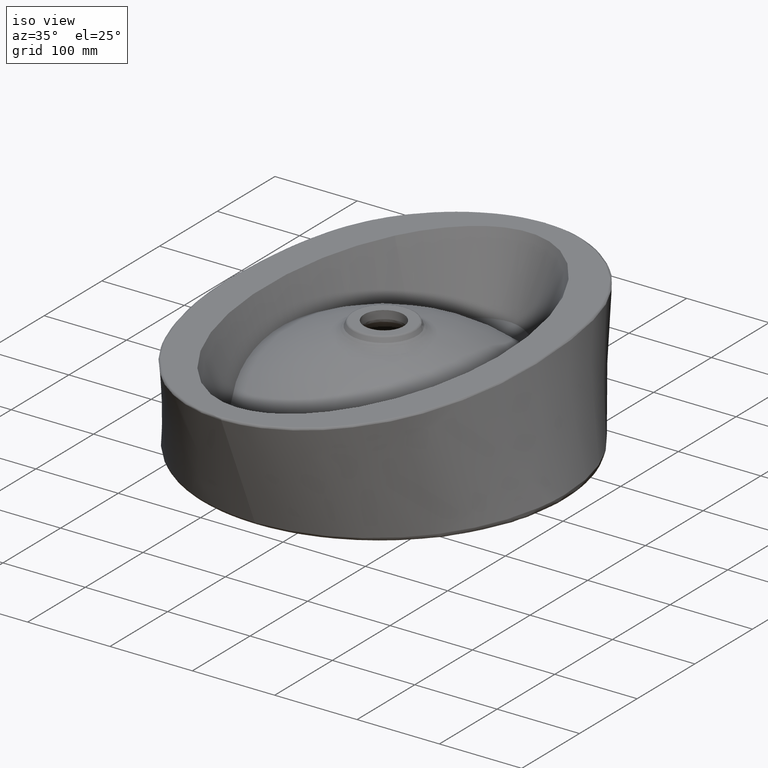
[diagram: clean part render]
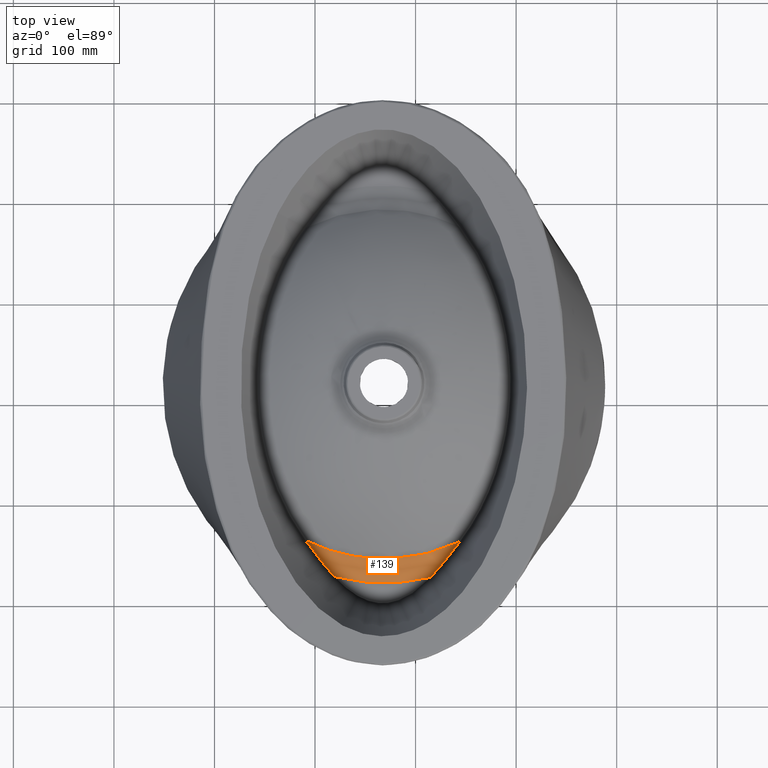
[diagram: tour spotlight — one face highlighted and labeled with its STEP entity id]
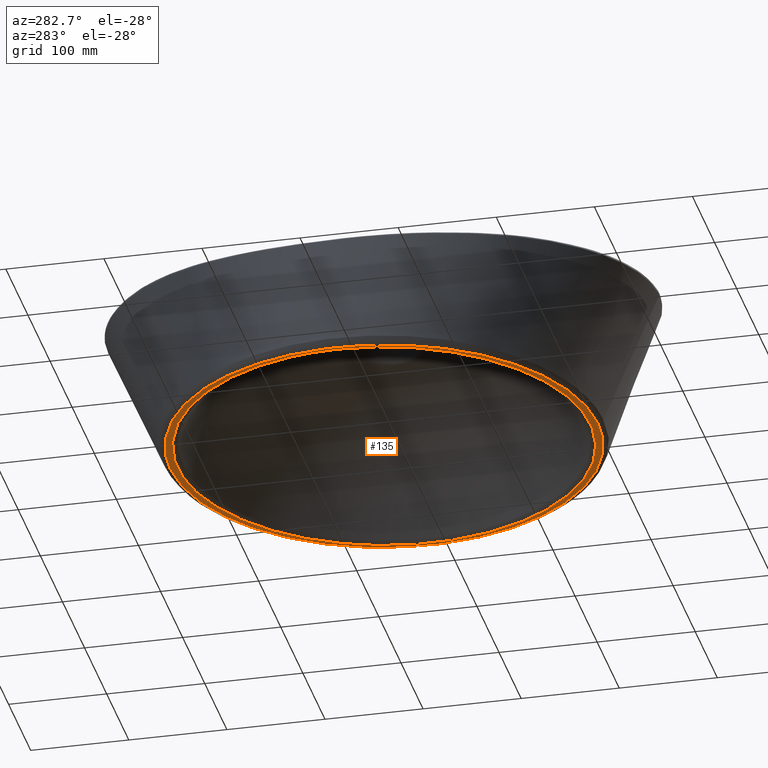
[diagram: tour spotlight — one face highlighted and labeled with its STEP entity id]
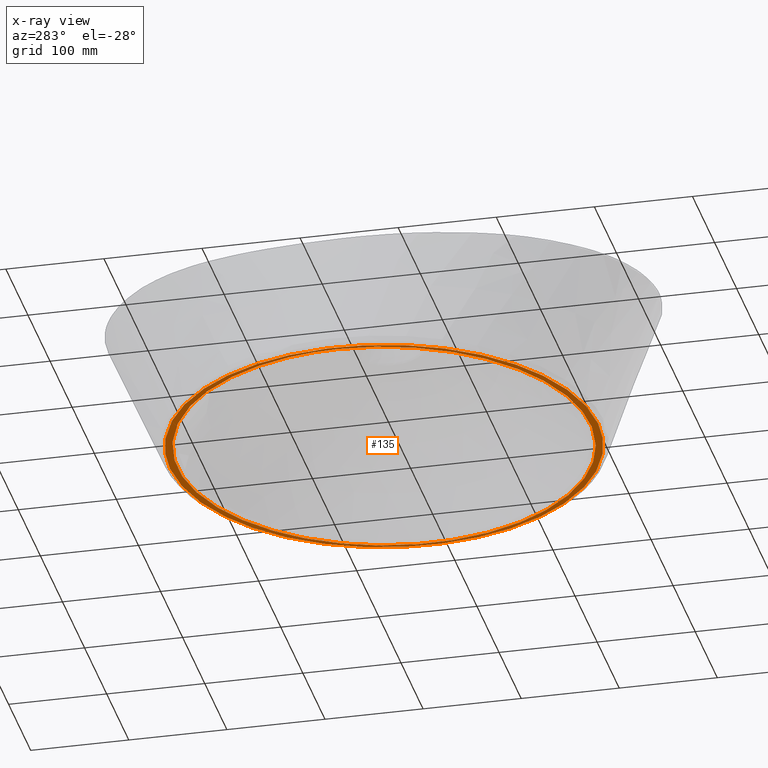
[diagram: x-ray of the same camera — body ghosted, this tour face saturated]
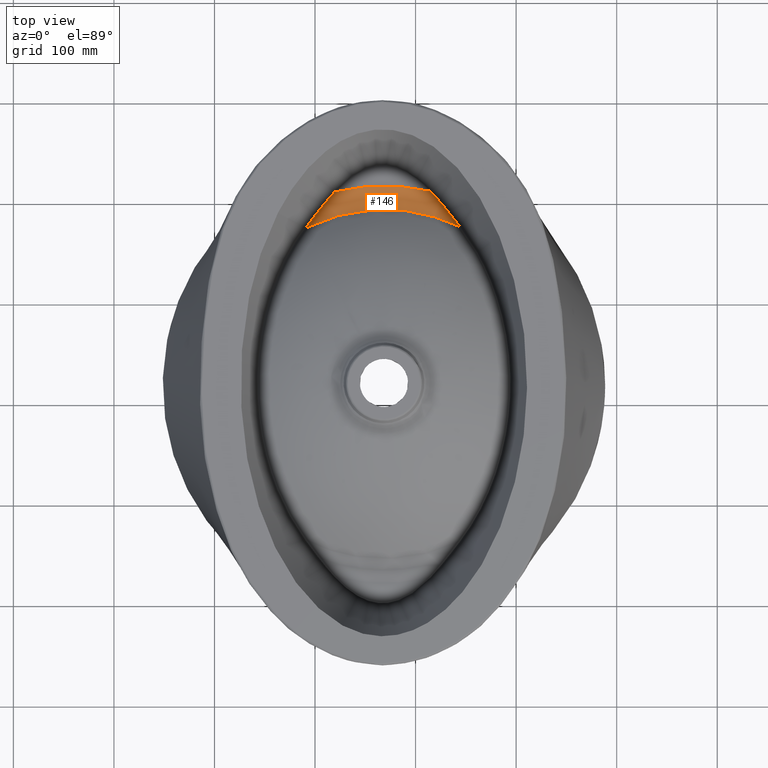
[diagram: tour spotlight — one face highlighted and labeled with its STEP entity id]
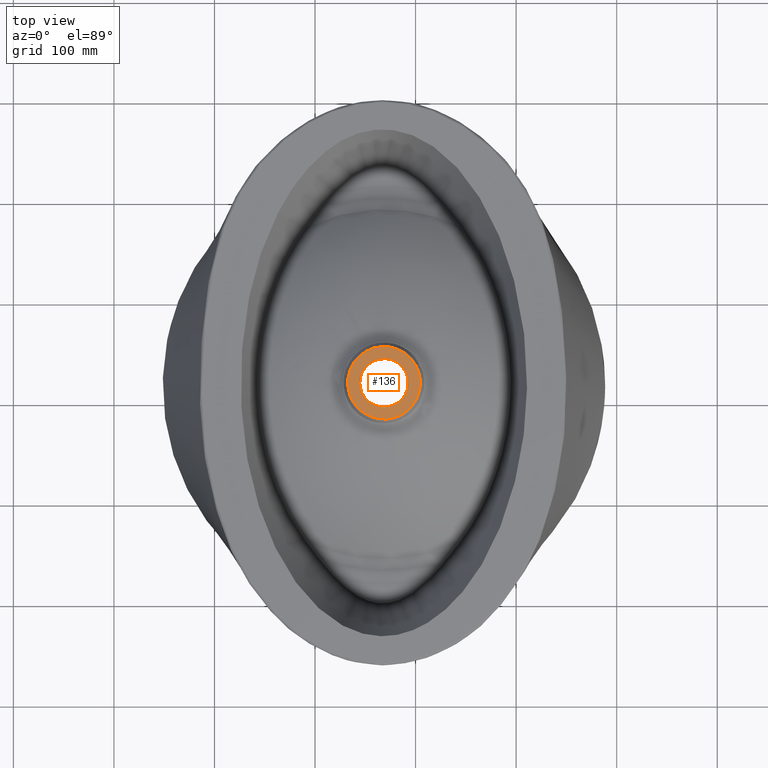
[diagram: tour spotlight — one face highlighted and labeled with its STEP entity id]
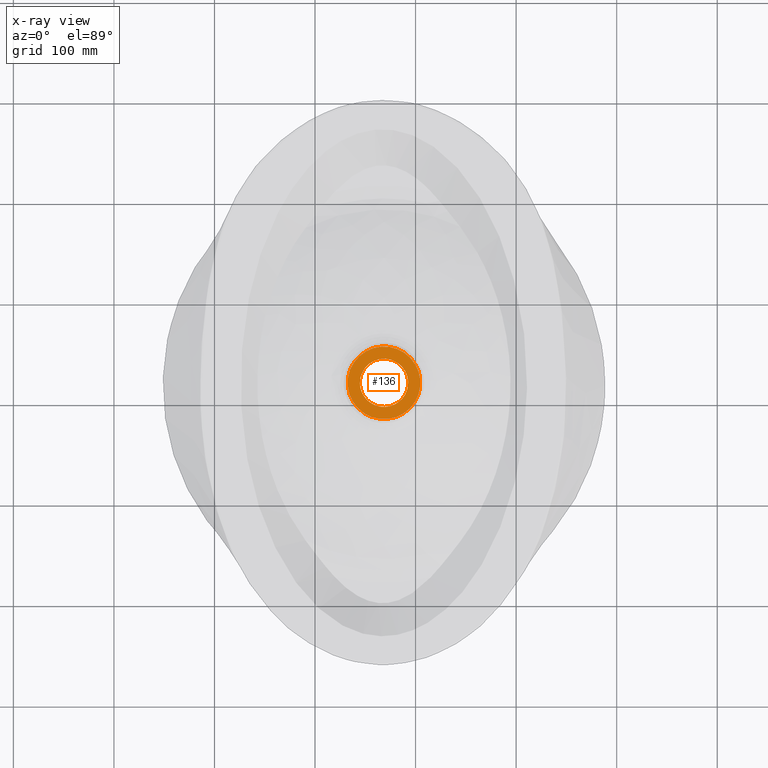
[diagram: x-ray of the same camera — body ghosted, this tour face saturated]
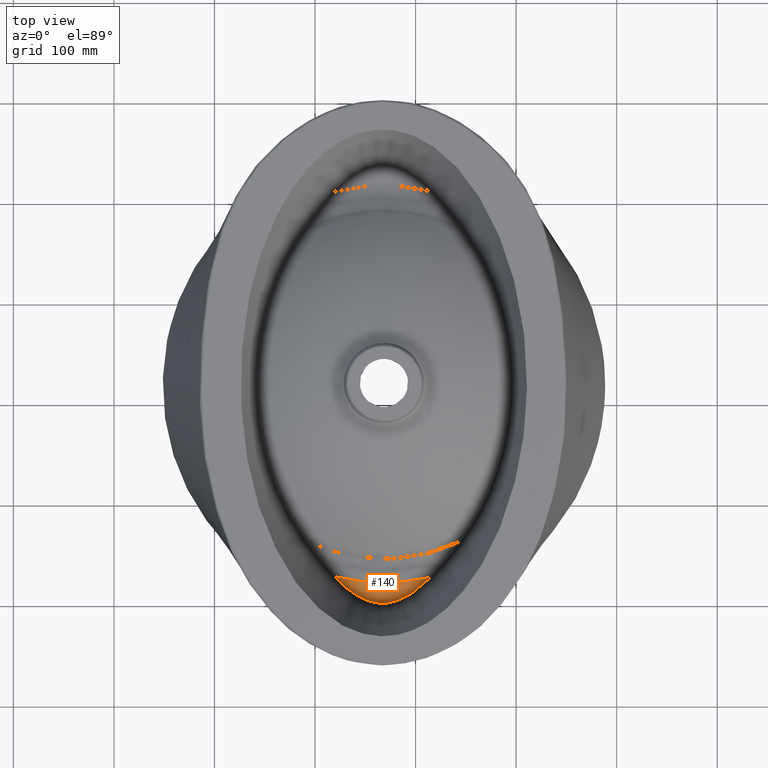
[diagram: tour spotlight — one face highlighted and labeled with its STEP entity id]
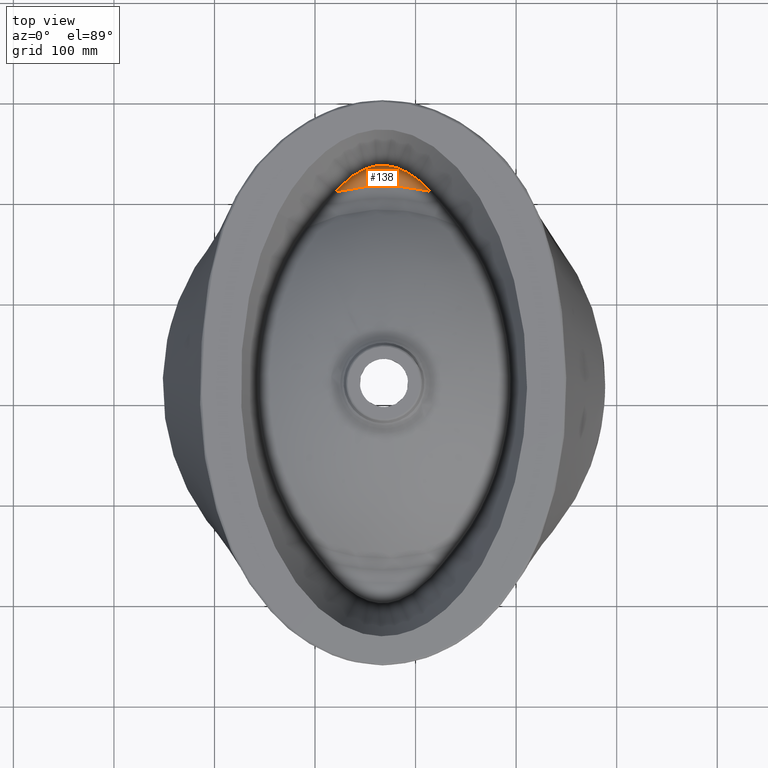
[diagram: tour spotlight — one face highlighted and labeled with its STEP entity id]
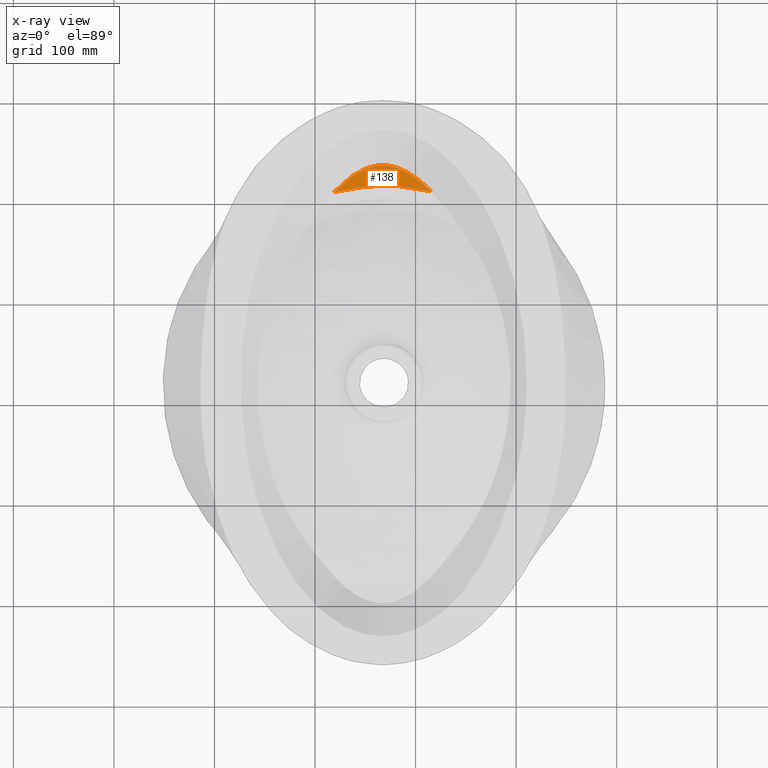
[diagram: x-ray of the same camera — body ghosted, this tour face saturated]
A machine part: a face-by-face anatomy tour. The part has 25 B-rep faces; the first image is the clean iso view, then the 6 largest visible faces are spotlighted one at a time (largest first), each with its STEP entity span.

Face 1 — top view, entity #139. In plain terms, the highlighted face is a freeform B-spline surface patch.
Definition (entity closure, byte-faithful):
#103=(
BOUNDED_SURFACE()
B_SPLINE_SURFACE(3,2,((#1013,#1014,#1015),(#1016,#1017,#1018),(#1019,#1020,
#1021),(#1022,#1023,#1024),(#1025,#1026,#1027),(#1028,#1029,#1030),(#1031,
#1032,#1033),(#1034,#1035,#1036),(#1037,#1038,#1039),(#1040,#1041,#1042),
(#1043,#1044,#1045),(#1046,#1047,#1048),(#1049,#1050,#1051),(#1052,#1053,
#1054),(#1055,#1056,#1057),(#1058,#1059,#1060),(#1061,#1062,#1063),(#1064,
#1065,#1066)),.UNSPECIFIED.,.F.,.F.,.F.)
B_SPLINE_SURFACE_WITH_KNOTS((4,2,2,2,2,2,2,2,4),(3,3),(0.,0.125,0.25,0.375,
0.5,0.75,0.8125,0.875,1.),(0.,1.),.UNSPECIFIED.)
GEOMETRIC_REPRESENTATION_ITEM()
RATIONAL_B_SPLINE_SURFACE(((1.,0.931697495796883,1.),(1.,0.931699319442522,
1.),(1.,0.931699182159446,1.),(1.,0.931696538213427,1.),(1.,0.931694742089065,
1.),(1.,0.931693677166306,1.),(1.,0.931694406140896,1.),(1.,0.931697192015914,
1.),(1.,0.931699206368978,1.),(1.,0.931698296147536,1.),(1.,0.931692851253933,
1.),(1.,0.93169488880163,1.),(1.,0.931695560533222,1.),(1.,0.931697036007378,
1.),(1.,0.931697838607875,1.),(1.,0.931699435853988,1.),(1.,0.931698652348789,
1.),(1.,0.931696916472136,1.)))
REPRESENTATION_ITEM('')
SURFACE()
);
#126=FACE_OUTER_BOUND('',#200,.T.);
#139=ADVANCED_FACE('',(#126),#103,.T.);
#200=EDGE_LOOP('',(#243,#244,#245,#246));
#243=ORIENTED_EDGE('',*,*,#350,.T.);
#244=ORIENTED_EDGE('',*,*,#351,.T.);
#245=ORIENTED_EDGE('',*,*,#352,.T.);
#246=ORIENTED_EDGE('',*,*,#353,.T.);
#321=VERTEX_POINT('',#979);
#322=VERTEX_POINT('',#980);
#323=VERTEX_POINT('',#989);
#324=VERTEX_POINT('',#996);
#350=EDGE_CURVE('',#321,#322,#389,.T.);
#351=EDGE_CURVE('',#322,#323,#390,.T.);
#352=EDGE_CURVE('',#323,#324,#391,.T.);
#353=EDGE_CURVE('',#324,#321,#392,.T.);
#389=B_SPLINE_CURVE_WITH_KNOTS('',3,(#973,#974,#975,#976,#977,#978),
 .UNSPECIFIED.,.F.,.F.,(4,2,4),(0.,0.5,1.),.UNSPECIFIED.);
#390=B_SPLINE_CURVE_WITH_KNOTS('',3,(#981,#982,#983,#984,#985,#986,#987,
#988),.UNSPECIFIED.,.F.,.F.,(4,2,2,4),(0.,0.5,0.75,1.),.UNSPECIFIED.);
#391=B_SPLINE_CURVE_WITH_KNOTS('',3,(#990,#991,#992,#993,#994,#995),
 .UNSPECIFIED.,.F.,.F.,(4,2,4),(0.,0.5,1.),.UNSPECIFIED.);
#392=B_SPLINE_CURVE_WITH_KNOTS('',3,(#997,#998,#999,#1000,#1001,#1002,#1003,
#1004,#1005,#1006,#1007,#1008,#1009,#1010,#1011,#1012),.UNSPECIFIED.,.F.,
 .F.,(4,2,2,2,2,2,2,4),(0.,0.125,0.25,0.375,0.5,0.75,0.875,1.),
 .UNSPECIFIED.);
#973=CARTESIAN_POINT('',(190.471527451647,-335.352552083994,174.235832542675));
#974=CARTESIAN_POINT('',(194.884213929976,-341.24737916602,171.218798129591));
#975=CARTESIAN_POINT('',(199.397508946079,-347.27241009631,168.933098349699));
#976=CARTESIAN_POINT('',(208.9173643323,-359.351094455966,165.820643985694));
#977=CARTESIAN_POINT('',(213.957004188166,-365.453170748607,165.000000000094));
#978=CARTESIAN_POINT('',(219.339496953542,-371.333690978372,165.000000000094));
#979=CARTESIAN_POINT('',(190.471527453963,-335.352552085992,174.235832541991));
#980=CARTESIAN_POINT('',(219.339496953541,-371.333690978372,165.000000000094));
#981=CARTESIAN_POINT('',(219.339496953541,-371.333690978372,165.000000000094));
#982=CARTESIAN_POINT('',(235.01457066413,-375.363062185071,165.000000000092));
#983=CARTESIAN_POINT('',(250.892532392169,-377.438825221064,165.00000000009));
#984=CARTESIAN_POINT('',(275.012213470833,-377.637401707193,165.000000000087));
#985=CARTESIAN_POINT('',(283.157283782419,-377.200108010685,165.000000000086));
#986=CARTESIAN_POINT('',(299.174224295407,-375.350972306021,165.000000000084));
#987=CARTESIAN_POINT('',(307.068461247952,-373.946624279451,165.000000000084));
#988=CARTESIAN_POINT('',(314.851117454118,-372.073636827354,165.000000000083));
#989=CARTESIAN_POINT('',(314.851117454118,-372.073636827354,165.000000000083));
#990=CARTESIAN_POINT('',(314.851117829163,-372.07363659669,165.000000000083));
#991=CARTESIAN_POINT('',(320.320122377981,-366.285611630332,165.000000017039));
#992=CARTESIAN_POINT('',(325.399435645145,-360.337635459118,165.804250502134));
#993=CARTESIAN_POINT('',(335.127696075172,-348.391615440892,168.906464884674));
#994=CARTESIAN_POINT('',(339.801019209466,-342.356238877371,171.220561428395));
#995=CARTESIAN_POINT('',(344.298156473016,-336.535011895029,174.235758381589));
#996=CARTESIAN_POINT('',(344.298156482571,-336.535011899422,174.235758374124));
#997=CARTESIAN_POINT('',(344.298156488452,-336.53501190857,174.235758364197));
#998=CARTESIAN_POINT('',(338.307659942318,-339.436119401214,174.235581041099));
#999=CARTESIAN_POINT('',(332.08750896722,-342.013617504608,174.235579682479));
#1000=CARTESIAN_POINT('',(319.542024992611,-346.379856047103,174.235932256303));
#1001=CARTESIAN_POINT('',(313.180790894595,-348.191234706339,174.236155867952));
#1002=CARTESIAN_POINT('',(300.285737439654,-351.088990115187,174.236279668447));
#1003=CARTESIAN_POINT('',(293.751922241343,-352.175384334439,174.236180157327));
#1004=CARTESIAN_POINT('',(280.506856192595,-353.602795167388,174.235818518881));
#1005=CARTESIAN_POINT('',(273.787188722761,-353.937628014429,174.235561582834));
#1006=CARTESIAN_POINT('',(253.8776837733,-353.771656630179,174.235679274193));
#1007=CARTESIAN_POINT('',(240.761594780939,-352.151062803847,174.236382458085));
#1008=CARTESIAN_POINT('',(221.321678366709,-347.466360974201,174.236086314143));
#1009=CARTESIAN_POINT('',(214.889716877692,-345.519741053868,174.23583318386));
#1010=CARTESIAN_POINT('',(202.436422022957,-340.954103383553,174.235538547599));
#1011=CARTESIAN_POINT('',(196.373581246639,-338.323845067228,174.235643529919));
#1012=CARTESIAN_POINT('',(190.471527453963,-335.352552085992,174.235832541991));
#1013=CARTESIAN_POINT('',(345.159134389774,-336.115112360222,174.235784342887));
#1014=CARTESIAN_POINT('',(349.58678883131,-345.131130039256,165.000000000079));
#1015=CARTESIAN_POINT('',(355.601639332319,-357.37914965549,165.000000000078));
#1016=CARTESIAN_POINT('',(339.114599451066,-339.083733341798,174.235598763984));
#1017=CARTESIAN_POINT('',(343.192684855787,-348.271371113052,165.000000001566));
#1018=CARTESIAN_POINT('',(348.732583291152,-360.752457865046,165.000000000079));
#1019=CARTESIAN_POINT('',(332.846253743266,-341.71775871793,174.235564377943));
#1020=CARTESIAN_POINT('',(336.555818131961,-351.060280936296,164.999999999975));
#1021=CARTESIAN_POINT('',(341.595145204391,-363.751730810443,165.00000000008));
#1022=CARTESIAN_POINT('',(320.168114452068,-346.190457208568,174.235909247583));
#1023=CARTESIAN_POINT('',(323.14252282458,-355.792443406278,165.000000000187));
#1024=CARTESIAN_POINT('',(327.183222663962,-368.836539770983,165.000000000082));
#1025=CARTESIAN_POINT('',(313.732016310403,-348.047676369844,174.236143530259));
#1026=CARTESIAN_POINT('',(316.336257652288,-357.756435959585,165.000000000294));
#1027=CARTESIAN_POINT('',(319.874110072277,-370.945708437044,165.000000000082));
#1028=CARTESIAN_POINT('',(300.680109634922,-351.018679227849,174.236282434382));
#1029=CARTESIAN_POINT('',(302.534939156928,-360.898069871898,164.999999999873));
#1030=CARTESIAN_POINT('',(305.054734993327,-374.319215676984,165.000000000084));
#1031=CARTESIAN_POINT('',(294.064319493779,-352.132470058058,174.23618735026));
#1032=CARTESIAN_POINT('',(295.539915594813,-362.075718084313,165.000000000298));
#1033=CARTESIAN_POINT('',(297.544476213013,-375.583569824843,165.000000000085));
#1034=CARTESIAN_POINT('',(280.659096249202,-353.595320780237,174.235823967064));
#1035=CARTESIAN_POINT('',(281.362238465371,-363.622753788673,164.999999999873));
#1036=CARTESIAN_POINT('',(282.317411191013,-377.244778242522,165.000000000087));
#1037=CARTESIAN_POINT('',(273.861751341871,-353.93813177849,174.235561219316));
#1038=CARTESIAN_POINT('',(274.170058065057,-363.985524498408,164.999999999559));
#1039=CARTESIAN_POINT('',(274.588887170882,-377.634521456147,165.000000000087));
#1040=CARTESIAN_POINT('',(253.737610055348,-353.770724478678,174.235679947775));
#1041=CARTESIAN_POINT('',(252.870512486428,-363.808374959443,165.000000001147));
#1042=CARTESIAN_POINT('',(251.692613414767,-377.444200453301,165.00000000009));
#1043=CARTESIAN_POINT('',(240.447647583427,-352.113599948085,174.236390165082));
#1044=CARTESIAN_POINT('',(238.820797336095,-362.05598933379,165.000000000519));
#1045=CARTESIAN_POINT('',(236.610646977602,-375.562761782134,165.000000000091));
#1046=CARTESIAN_POINT('',(224.045240816634,-348.112265194086,174.236124392708));
#1047=CARTESIAN_POINT('',(221.476056208353,-357.824692169647,164.999999999986));
#1048=CARTESIAN_POINT('',(217.985837249755,-371.018938389014,165.000000000094));
#1049=CARTESIAN_POINT('',(220.765979543213,-347.21075984395,174.236036773886));
#1050=CARTESIAN_POINT('',(218.00816040778,-356.871314524945,165.000000000201));
#1051=CARTESIAN_POINT('',(214.26169261467,-369.995046809952,165.000000000094));
#1052=CARTESIAN_POINT('',(214.306788757671,-345.230762476974,174.23584431682));
#1053=CARTESIAN_POINT('',(211.176314438785,-354.777023359971,164.999999999988));
#1054=CARTESIAN_POINT('',(206.923631322757,-367.745392172437,165.000000000095));
#1055=CARTESIAN_POINT('',(211.12064826835,-344.151370252728,174.235739627338));
#1056=CARTESIAN_POINT('',(207.80579820907,-353.635158194597,165.000000000042));
#1057=CARTESIAN_POINT('',(203.302665454397,-366.51860696733,165.000000000095));
#1058=CARTESIAN_POINT('',(201.692504196786,-340.64954000244,174.23553128646));
#1059=CARTESIAN_POINT('',(197.829627855185,-349.929711708659,165.000000000201));
#1060=CARTESIAN_POINT('',(192.582044283605,-362.536446050156,165.000000000097));
#1061=CARTESIAN_POINT('',(195.58293776633,-337.963928545163,174.235666698193));
#1062=CARTESIAN_POINT('',(191.360770930531,-347.086098714013,165.000000002946));
#1063=CARTESIAN_POINT('',(185.625127847866,-359.47828337595,165.000000000097));
#1064=CARTESIAN_POINT('',(189.622701136141,-334.922305745515,174.235859908639));
#1065=CARTESIAN_POINT('',(185.05721362899,-343.86933774429,165.000000000097));
#1066=CARTESIAN_POINT('',(178.855102392869,-356.023677801654,165.000000000098));

Face 2 — auxiliary view, entity #135. An x-ray twin of the same camera follows (body ghosted, this face saturated) — the face is partly hidden behind the body. In plain terms, the highlighted planar face has unit normal (0, -0, 1).
Definition (entity closure, byte-faithful):
#135=ADVANCED_FACE('',(#163,#164),#160,.F.);
#160=PLANE('',#419);
#163=FACE_BOUND('',#193,.T.);
#164=FACE_BOUND('',#194,.T.);
#193=EDGE_LOOP('',(#233));
#194=EDGE_LOOP('',(#234,#235));
#233=ORIENTED_EDGE('',*,*,#340,.T.);
#234=ORIENTED_EDGE('',*,*,#341,.T.);
#235=ORIENTED_EDGE('',*,*,#342,.T.);
#311=VERTEX_POINT('',#519);
#312=VERTEX_POINT('',#566);
#313=VERTEX_POINT('',#567);
#340=EDGE_CURVE('',#311,#311,#379,.T.);
#341=EDGE_CURVE('',#312,#313,#380,.T.);
#342=EDGE_CURVE('',#313,#312,#381,.T.);
#379=B_SPLINE_CURVE_WITH_KNOTS('',3,(#431,#432,#433,#434,#435,#436,#437,
#438,#439,#440,#441,#442,#443,#444,#445,#446,#447,#448,#449,#450,#451,#452,
#453,#454,#455,#456,#457,#458,#459,#460,#461,#462,#463,#464,#465,#466,#467,
#468,#469,#470,#471,#472,#473,#474,#475,#476,#477,#478,#479,#480,#481,#482,
#483,#484,#485,#486,#487,#488,#489,#490,#491,#492,#493,#494,#495,#496,#497,
#498,#499,#500,#501,#502,#503,#504,#505,#506,#507,#508,#509,#510,#511,#512,
#513,#514,#515,#516,#517,#518),.UNSPECIFIED.,.T.,.F.,(2,2,2,2,2,2,2,2,2,
2,2,2,2,2,2,2,2,2,2,2,2,2,2,2,2,2,2,2,2,2,2,2,2,2,2,2,2,2,2,2,2,2,2,2,2,
2),(-0.0312499999999998,0.,0.0312500000000002,0.0468750000000004,0.0625000000000005,
0.0937500000000007,0.125000000000001,0.156250000000001,0.171875000000001,
0.187500000000001,0.203125000000001,0.218750000000001,0.250000000000001,
0.265625000000001,0.281250000000001,0.312500000000002,0.328125000000002,
0.343750000000002,0.375000000000002,0.406250000000002,0.421875000000002,
0.437500000000002,0.468750000000002,0.500000000000002,0.531250000000002,
0.562500000000002,0.578125000000002,0.593750000000002,0.625000000000002,
0.656250000000002,0.671875000000002,0.687500000000002,0.718750000000001,
0.750000000000001,0.781250000000001,0.796875000000001,0.812500000000001,
0.828125000000001,0.843750000000001,0.875,0.90625,0.9375,0.953125,0.96875,
1.,1.03125),.UNSPECIFIED.);
#380=B_SPLINE_CURVE_WITH_KNOTS('',3,(#520,#521,#522,#523,#524,#525,#526,
#527,#528,#529,#530,#531,#532,#533,#534,#535,#536,#537,#538,#539,#540,#541,
#542,#543,#544,#545,#546,#547,#548,#549,#550,#551,#552,#553,#554,#555,#556,
#557,#558,#559,#560,#561,#562,#563,#564,#565),.UNSPECIFIED.,.F.,.F.,(4,
2,2,2,2,2,2,2,2,2,2,2,2,2,2,2,2,2,2,2,2,2,4),(0.,0.0625000000000002,0.0937500000000003,
0.125,0.187500000000001,0.218750000000001,0.250000000000001,0.312500000000001,
0.375,0.40625,0.4375,0.5,0.5625,0.625,0.65625,0.6875,0.75,0.78125,0.8125,
0.84375,0.875,0.9375,1.),.UNSPECIFIED.);
#381=B_SPLINE_CURVE_WITH_KNOTS('',3,(#568,#569,#570,#571,#572,#573,#574,
#575,#576,#577,#578,#579,#580,#581,#582,#583,#584,#585,#586,#587,#588,#589,
#590,#591,#592,#593,#594,#595,#596,#597,#598,#599,#600,#601,#602,#603,#604,
#605,#606,#607,#608,#609,#610,#611),.UNSPECIFIED.,.F.,.F.,(4,2,2,2,2,2,
2,2,2,2,2,2,2,2,2,2,2,2,2,2,2,4),(0.,0.0624999999999999,0.0937499999999998,
0.125,0.1875,0.21875,0.25,0.3125,0.375,0.40625,0.4375,0.5,0.5625,0.625,
0.65625,0.6875,0.750000000000001,0.812500000000001,0.843750000000001,0.875000000000001,
0.9375,1.),.UNSPECIFIED.);
#419=AXIS2_PLACEMENT_3D('',#612,#424,#425);
#424=DIRECTION('',(1.97935726740634E-014,-1.95279377688183E-015,1.));
#425=DIRECTION('',(1.,0.,-1.97897254139434E-014));
#431=CARTESIAN_POINT('',(58.0044635933753,-166.085439116518,110.000000000042));
#432=CARTESIAN_POINT('',(58.0044635933752,-193.914560883483,110.000000000043));
#433=CARTESIAN_POINT('',(59.3860887421209,-207.597030326894,110.000000000042));
#434=CARTESIAN_POINT('',(63.3990349775454,-227.783565280246,110.000000000042));
#435=CARTESIAN_POINT('',(65.0635348476801,-234.456273487757,110.000000000042));
#436=CARTESIAN_POINT('',(69.0646880308418,-247.686247351083,110.000000000042));
#437=CARTESIAN_POINT('',(71.4135933274352,-254.264235987942,110.000000000042));
#438=CARTESIAN_POINT('',(79.3435054635843,-273.392948117313,110.000000000042));
#439=CARTESIAN_POINT('',(85.8262516510686,-285.479378507948,110.000000000042));
#440=CARTESIAN_POINT('',(101.10576720297,-308.363724112408,110.000000000041));
#441=CARTESIAN_POINT('',(109.988653008497,-319.211176277556,110.000000000041));
#442=CARTESIAN_POINT('',(129.417328404954,-338.634084532759,110.000000000041));
#443=CARTESIAN_POINT('',(140.026429450307,-347.33574000135,110.000000000041));
#444=CARTESIAN_POINT('',(157.281015895944,-358.874890940926,110.00000000004));
#445=CARTESIAN_POINT('',(163.261307209825,-362.462543817093,110.00000000004));
#446=CARTESIAN_POINT('',(175.414603785006,-368.966121945569,110.00000000004));
#447=CARTESIAN_POINT('',(181.619262269369,-371.904627465389,110.00000000004));
#448=CARTESIAN_POINT('',(194.284868332677,-377.154413815356,110.000000000039));
#449=CARTESIAN_POINT('',(200.745829613636,-379.465661112113,110.000000000039));
#450=CARTESIAN_POINT('',(213.92302391756,-383.46342081621,110.000000000039));
#451=CARTESIAN_POINT('',(220.673821613924,-385.156285550955,110.000000000039));
#452=CARTESIAN_POINT('',(241.060627106465,-389.214943926215,110.000000000038));
#453=CARTESIAN_POINT('',(254.720822332565,-390.568813006473,110.000000000038));
#454=CARTESIAN_POINT('',(275.314082002354,-390.581961483997,110.000000000038));
#455=CARTESIAN_POINT('',(282.195839028836,-390.246619735329,110.000000000038));
#456=CARTESIAN_POINT('',(295.994462115243,-388.887967875281,110.000000000037));
#457=CARTESIAN_POINT('',(302.874468793385,-387.864679127656,110.000000000037));
#458=CARTESIAN_POINT('',(323.132523207682,-383.838491725999,110.000000000037));
#459=CARTESIAN_POINT('',(336.263451231395,-379.880710190315,110.000000000037));
#460=CARTESIAN_POINT('',(355.382368752189,-371.979768276642,110.000000000036));
#461=CARTESIAN_POINT('',(361.691653705621,-368.995674890023,110.000000000036));
#462=CARTESIAN_POINT('',(373.892822288479,-362.469345487056,110.000000000036));
#463=CARTESIAN_POINT('',(379.79374852527,-358.928352756148,110.000000000036));
#464=CARTESIAN_POINT('',(396.915469610303,-347.496821683744,110.000000000036));
#465=CARTESIAN_POINT('',(407.563244735918,-338.808915359039,110.000000000035));
#466=CARTESIAN_POINT('',(427.229480909241,-319.165880781631,110.000000000035));
#467=CARTESIAN_POINT('',(435.956697404917,-308.492321503501,110.000000000035));
#468=CARTESIAN_POINT('',(447.40026018308,-291.3884660798,110.000000000035));
#469=CARTESIAN_POINT('',(450.943049899884,-285.497271609945,110.000000000035));
#470=CARTESIAN_POINT('',(457.4708285691,-273.325043133723,110.000000000034));
#471=CARTESIAN_POINT('',(460.465426437969,-267.013893551703,110.000000000034));
#472=CARTESIAN_POINT('',(468.400237579954,-247.871257405882,110.000000000034));
#473=CARTESIAN_POINT('',(472.368458710079,-234.740882483769,110.000000000034));
#474=CARTESIAN_POINT('',(477.757189745136,-207.769559632657,110.000000000034));
#475=CARTESIAN_POINT('',(479.15958400363,-193.836074153027,110.000000000034));
#476=CARTESIAN_POINT('',(479.159826903072,-166.167567105552,110.000000000034));
#477=CARTESIAN_POINT('',(477.757753783955,-152.233626331921,110.000000000034));
#478=CARTESIAN_POINT('',(472.368324485253,-125.258082857374,110.000000000034));
#479=CARTESIAN_POINT('',(468.39987429466,-112.128386100295,110.000000000034));
#480=CARTESIAN_POINT('',(460.467325044307,-92.9904269337901,110.000000000035));
#481=CARTESIAN_POINT('',(457.472964749499,-86.6791492899331,110.000000000035));
#482=CARTESIAN_POINT('',(450.943766541882,-74.5038556630552,110.000000000035));
#483=CARTESIAN_POINT('',(447.400472414414,-68.6118592437116,110.000000000035));
#484=CARTESIAN_POINT('',(435.956505882724,-51.5073760087995,110.000000000035));
#485=CARTESIAN_POINT('',(427.237295755491,-40.8425206535865,110.000000000035));
#486=CARTESIAN_POINT('',(407.564326785765,-21.1915698749534,110.000000000036));
#487=CARTESIAN_POINT('',(396.915090829707,-12.5030284746346,110.000000000036));
#488=CARTESIAN_POINT('',(379.795591314864,-1.07282608483426,110.000000000036));
#489=CARTESIAN_POINT('',(373.896141555327,2.46732944172585,110.000000000037));
#490=CARTESIAN_POINT('',(361.699741701668,8.99158903625956,110.000000000037));
#491=CARTESIAN_POINT('',(355.388480975279,11.977075872593,110.000000000037));
#492=CARTESIAN_POINT('',(336.264052903068,19.880794404714,110.000000000037));
#493=CARTESIAN_POINT('',(323.133379032664,23.8379405450046,110.000000000038));
#494=CARTESIAN_POINT('',(296.132230326504,29.2050463678154,110.000000000038));
#495=CARTESIAN_POINT('',(282.184751004894,30.586099236642,110.000000000039));
#496=CARTESIAN_POINT('',(254.722096521222,30.5690628149579,110.000000000039));
#497=CARTESIAN_POINT('',(241.064763732659,29.2149393271212,110.000000000039));
#498=CARTESIAN_POINT('',(220.690054028213,25.1599306493819,110.00000000004));
#499=CARTESIAN_POINT('',(213.932620410161,23.4660871466755,110.00000000004));
#500=CARTESIAN_POINT('',(200.749973853217,19.4671632547999,110.00000000004));
#501=CARTESIAN_POINT('',(194.287740379332,17.1554919445535,110.00000000004));
#502=CARTESIAN_POINT('',(181.622188229382,11.905952509404,110.00000000004));
#503=CARTESIAN_POINT('',(175.418856704828,8.96811545913768,110.000000000041));
#504=CARTESIAN_POINT('',(163.270490160881,2.46773991190337,110.000000000041));
#505=CARTESIAN_POINT('',(157.294189910843,-1.11675431838314,110.000000000041));
#506=CARTESIAN_POINT('',(140.029000914345,-12.6616304669075,110.000000000041));
#507=CARTESIAN_POINT('',(129.41828476073,-21.3653172682804,110.000000000041));
#508=CARTESIAN_POINT('',(109.99310194609,-40.7840183320965,110.000000000042));
#509=CARTESIAN_POINT('',(101.111359841204,-51.6284929913958,110.000000000042));
#510=CARTESIAN_POINT('',(85.8262996799835,-74.5199565005338,110.000000000042));
#511=CARTESIAN_POINT('',(79.3439102098135,-86.6068592100477,110.000000000042));
#512=CARTESIAN_POINT('',(71.4159813294569,-105.729611979318,110.000000000042));
#513=CARTESIAN_POINT('',(69.0671434016287,-112.30624074597,110.000000000042));
#514=CARTESIAN_POINT('',(65.0641823584107,-125.54097908296,110.000000000042));
#515=CARTESIAN_POINT('',(63.3992145546408,-132.215487985949,110.000000000043));
#516=CARTESIAN_POINT('',(59.385576507977,-152.405633189355,110.000000000043));
#517=CARTESIAN_POINT('',(58.0044635933753,-166.085439116518,110.000000000042));
#518=CARTESIAN_POINT('',(58.0044635933752,-193.914560883483,110.000000000043));
#519=CARTESIAN_POINT('',(58.0044635933752,-180.,110.000000000043));
#520=CARTESIAN_POINT('',(268.55516377575,-398.264496976266,110.000000000038));
#521=CARTESIAN_POINT('',(254.250943650795,-398.265998730742,110.000000000038));
#522=CARTESIAN_POINT('',(240.19466066184,-396.811474539025,110.000000000038));
#523=CARTESIAN_POINT('',(219.454448493227,-392.60828044841,110.000000000039));
#524=CARTESIAN_POINT('',(212.600030249087,-390.860817974228,110.000000000039));
#525=CARTESIAN_POINT('',(199.010565896903,-386.664872879345,110.000000000039));
#526=CARTESIAN_POINT('',(192.268739444016,-384.208852030774,110.000000000039));
#527=CARTESIAN_POINT('',(172.686485455835,-375.922250218367,110.00000000004));
#528=CARTESIAN_POINT('',(160.332276585989,-369.133433348565,110.00000000004));
#529=CARTESIAN_POINT('',(142.802033281918,-357.143585738032,110.000000000041));
#530=CARTESIAN_POINT('',(137.097781446703,-352.818718482157,110.000000000041));
#531=CARTESIAN_POINT('',(126.195926310985,-343.660118609511,110.000000000041));
#532=CARTESIAN_POINT('',(121.011182552322,-338.842976766801,110.000000000041));
#533=CARTESIAN_POINT('',(106.251814955246,-323.681320615401,110.000000000041));
#534=CARTESIAN_POINT('',(97.4634499576256,-312.634264322012,110.000000000042));
#535=CARTESIAN_POINT('',(81.9604474535129,-288.687224236353,110.000000000042));
#536=CARTESIAN_POINT('',(75.4455659184357,-276.076229364554,110.000000000042));
#537=CARTESIAN_POINT('',(67.5777229488807,-256.441931366468,110.000000000042));
#538=CARTESIAN_POINT('',(65.2690262699813,-249.765072149534,110.000000000042));
#539=CARTESIAN_POINT('',(61.2835820150631,-236.145436231061,110.000000000042));
#540=CARTESIAN_POINT('',(59.6036259469005,-229.171820330507,110.000000000042));
#541=CARTESIAN_POINT('',(55.608412406325,-208.25491194379,110.000000000043));
#542=CARTESIAN_POINT('',(54.2832163712896,-194.217899247196,110.000000000043));
#543=CARTESIAN_POINT('',(54.2889948138297,-165.960467473245,110.000000000043));
#544=CARTESIAN_POINT('',(55.666334893605,-151.626098505949,110.000000000043));
#545=CARTESIAN_POINT('',(60.9747928320024,-123.868847909325,110.000000000043));
#546=CARTESIAN_POINT('',(64.8851011765978,-110.329666615306,110.000000000043));
#547=CARTESIAN_POINT('',(72.7384235910694,-90.5580956958242,110.000000000042));
#548=CARTESIAN_POINT('',(75.7104490023545,-84.0257923043853,110.000000000042));
#549=CARTESIAN_POINT('',(82.2159689386691,-71.3973780376921,110.000000000042));
#550=CARTESIAN_POINT('',(85.7532107062285,-65.2812221883283,110.000000000042));
#551=CARTESIAN_POINT('',(97.2048522836284,-47.517489751574,110.000000000042));
#552=CARTESIAN_POINT('',(105.953475338901,-36.4506848874837,110.000000000042));
#553=CARTESIAN_POINT('',(120.873869399796,-21.1018376371234,110.000000000042));
#554=CARTESIAN_POINT('',(126.105638906726,-16.2440866231995,110.000000000042));
#555=CARTESIAN_POINT('',(136.936351292528,-7.14422652821084,110.000000000041));
#556=CARTESIAN_POINT('',(142.55466436585,-2.88195784553298,110.000000000041));
#557=CARTESIAN_POINT('',(154.194954285621,5.0704458150481,110.000000000041));
#558=CARTESIAN_POINT('',(160.216923095592,8.76059218347068,110.000000000041));
#559=CARTESIAN_POINT('',(172.66794785701,15.5638990971528,110.000000000041));
#560=CARTESIAN_POINT('',(179.132389370826,18.6895673513785,110.000000000041));
#561=CARTESIAN_POINT('',(198.766617049614,26.9861110703899,110.00000000004));
#562=CARTESIAN_POINT('',(212.244300393884,31.1421757539983,110.00000000004));
#563=CARTESIAN_POINT('',(239.951521681426,36.7913013058161,110.000000000039));
#564=CARTESIAN_POINT('',(254.261646104614,38.2572432283024,110.000000000039));
#565=CARTESIAN_POINT('',(268.564663369317,38.2550878492682,110.000000000039));
#566=CARTESIAN_POINT('',(268.55516377575,-398.264496976266,110.000000000038));
#567=CARTESIAN_POINT('',(268.564663369317,38.2550878492682,110.000000000039));
#568=CARTESIAN_POINT('',(268.564663369342,38.2550880169023,110.000000000039));
#569=CARTESIAN_POINT('',(282.862462724465,38.256521295227,110.000000000039));
#570=CARTESIAN_POINT('',(296.915785245927,36.8230478541291,110.000000000038));
#571=CARTESIAN_POINT('',(317.646935734626,32.6254320986875,110.000000000038));
#572=CARTESIAN_POINT('',(324.499201042452,30.885114039507,110.000000000038));
#573=CARTESIAN_POINT('',(338.083801247772,26.7005709330264,110.000000000037));
#574=CARTESIAN_POINT('',(344.824768682302,24.2475804289998,110.000000000037));
#575=CARTESIAN_POINT('',(364.411546848542,15.9807820444192,110.000000000037));
#576=CARTESIAN_POINT('',(376.786111384385,9.23566732471318,110.000000000037));
#577=CARTESIAN_POINT('',(394.332391880158,-2.71596655344884,110.000000000036));
#578=CARTESIAN_POINT('',(400.037851924306,-7.03467349525178,110.000000000036));
#579=CARTESIAN_POINT('',(410.945979930635,-16.1903787712401,110.000000000036));
#580=CARTESIAN_POINT('',(416.131511875754,-21.0072259027061,110.000000000036));
#581=CARTESIAN_POINT('',(430.893642847215,-36.164843871537,110.000000000035));
#582=CARTESIAN_POINT('',(439.681088846963,-47.20796372911,110.000000000035));
#583=CARTESIAN_POINT('',(455.151162553391,-71.1674992639955,110.000000000035));
#584=CARTESIAN_POINT('',(461.648423769072,-83.8000042885219,110.000000000035));
#585=CARTESIAN_POINT('',(469.477227143325,-103.453697677199,110.000000000035));
#586=CARTESIAN_POINT('',(471.772377196846,-110.1362965075,110.000000000034));
#587=CARTESIAN_POINT('',(475.73882366249,-123.762120465699,110.000000000034));
#588=CARTESIAN_POINT('',(477.413456054049,-130.735154190536,110.000000000034));
#589=CARTESIAN_POINT('',(481.411734914062,-151.651413629869,110.000000000034));
#590=CARTESIAN_POINT('',(482.761166146205,-165.687544428277,110.000000000034));
#591=CARTESIAN_POINT('',(482.798546594912,-193.945769374683,110.000000000034));
#592=CARTESIAN_POINT('',(481.446578589594,-208.285390012035,110.000000000034));
#593=CARTESIAN_POINT('',(476.149785582954,-236.037376400861,110.000000000034));
#594=CARTESIAN_POINT('',(472.22134715842,-249.56430933442,110.000000000034));
#595=CARTESIAN_POINT('',(464.338959428821,-269.312120485335,110.000000000034));
#596=CARTESIAN_POINT('',(461.358144215769,-275.837546472081,110.000000000034));
#597=CARTESIAN_POINT('',(454.832594560552,-288.463092175888,110.000000000035));
#598=CARTESIAN_POINT('',(451.28648140805,-294.577839919065,110.000000000034));
#599=CARTESIAN_POINT('',(439.813985537987,-312.339091368886,110.000000000035));
#600=CARTESIAN_POINT('',(431.066708105733,-323.411871894274,110.000000000035));
#601=CARTESIAN_POINT('',(411.181846966564,-343.886848282336,110.000000000035));
#602=CARTESIAN_POINT('',(400.296735232817,-353.011139168562,110.000000000035));
#603=CARTESIAN_POINT('',(382.860336952631,-364.972543229383,110.000000000036));
#604=CARTESIAN_POINT('',(376.850465837265,-368.679946722066,110.000000000036));
#605=CARTESIAN_POINT('',(364.419647869077,-375.513224105896,110.000000000036));
#606=CARTESIAN_POINT('',(357.960637319002,-378.651342822495,110.000000000036));
#607=CARTESIAN_POINT('',(338.331488199038,-386.967163011484,110.000000000037));
#608=CARTESIAN_POINT('',(324.858159439152,-391.130307813709,110.000000000037));
#609=CARTESIAN_POINT('',(297.161167398092,-396.781145809597,110.000000000037));
#610=CARTESIAN_POINT('',(282.856513048598,-398.266539814468,110.000000000038));
#611=CARTESIAN_POINT('',(268.555163775768,-398.264497140494,110.000000000038));
#612=CARTESIAN_POINT('',(268.582671761952,-180.006690937065,110.000000000038));

Face 3 — top view, entity #146. In plain terms, the highlighted face is a freeform B-spline surface patch.
Definition (entity closure, byte-faithful):
#104=(
BOUNDED_SURFACE()
B_SPLINE_SURFACE(3,2,((#4028,#4029,#4030),(#4031,#4032,#4033),(#4034,#4035,
#4036),(#4037,#4038,#4039),(#4040,#4041,#4042),(#4043,#4044,#4045),(#4046,
#4047,#4048),(#4049,#4050,#4051),(#4052,#4053,#4054),(#4055,#4056,#4057),
(#4058,#4059,#4060),(#4061,#4062,#4063),(#4064,#4065,#4066),(#4067,#4068,
#4069)),.UNSPECIFIED.,.F.,.F.,.F.)
B_SPLINE_SURFACE_WITH_KNOTS((4,2,2,2,2,2,4),(3,3),(0.,0.25,0.374999999999999,
0.5,0.625,0.75,1.),(0.,1.),.UNSPECIFIED.)
GEOMETRIC_REPRESENTATION_ITEM()
RATIONAL_B_SPLINE_SURFACE(((1.,0.931696900142531,1.),(1.,0.931701914250495,
1.),(1.,0.93169614182593,1.),(1.,0.931693671085884,1.),(1.,0.931694034568789,
1.),(1.,0.931696526357238,1.),(1.,0.931698626717956,1.),(1.,0.931699188654302,
1.),(1.,0.93169719554486,1.),(1.,0.931694408731994,1.),(1.,0.931693668990233,
1.),(1.,0.931695329509609,1.),(1.,0.931701707399626,1.),(1.,0.93169747869808,
1.)))
REPRESENTATION_ITEM('')
SURFACE()
);
#128=FACE_OUTER_BOUND('',#212,.T.);
#146=ADVANCED_FACE('',(#128),#104,.T.);
#212=EDGE_LOOP('',(#262,#263,#264,#265));
#262=ORIENTED_EDGE('',*,*,#362,.T.);
#263=ORIENTED_EDGE('',*,*,#348,.T.);
#264=ORIENTED_EDGE('',*,*,#363,.T.);
#265=ORIENTED_EDGE('',*,*,#357,.T.);
#319=VERTEX_POINT('',#921);
#320=VERTEX_POINT('',#922);
#325=VERTEX_POINT('',#1139);
#326=VERTEX_POINT('',#1162);
#348=EDGE_CURVE('',#319,#320,#387,.T.);
#357=EDGE_CURVE('',#325,#326,#396,.T.);
#362=EDGE_CURVE('',#326,#319,#401,.T.);
#363=EDGE_CURVE('',#320,#325,#402,.T.);
#387=B_SPLINE_CURVE_WITH_KNOTS('',3,(#911,#912,#913,#914,#915,#916,#917,
#918,#919,#920),.UNSPECIFIED.,.F.,.F.,(4,2,2,2,4),(0.,0.25,0.5,0.75,1.),
 .UNSPECIFIED.);
#396=B_SPLINE_CURVE_WITH_KNOTS('',3,(#1163,#1164,#1165,#1166,#1167,#1168,
#1169,#1170,#1171,#1172,#1173,#1174,#1175,#1176),.UNSPECIFIED.,.F.,.F.,
(4,2,2,2,2,2,4),(0.,0.25,0.375,0.5,0.624999999999999,0.749999999999999,
1.),.UNSPECIFIED.);
#401=B_SPLINE_CURVE_WITH_KNOTS('',3,(#4016,#4017,#4018,#4019,#4020,#4021),
 .UNSPECIFIED.,.F.,.F.,(4,2,4),(0.,0.5,1.),.UNSPECIFIED.);
#402=B_SPLINE_CURVE_WITH_KNOTS('',3,(#4022,#4023,#4024,#4025,#4026,#4027),
 .UNSPECIFIED.,.F.,.F.,(4,2,4),(0.,0.5,1.),.UNSPECIFIED.);
#911=CARTESIAN_POINT('',(314.997619437616,12.0383205851236,165.000000000083));
#912=CARTESIAN_POINT('',(307.169084205377,13.9286364850016,165.000000000084));
#913=CARTESIAN_POINT('',(299.126524475342,15.358799376037,165.000000000085));
#914=CARTESIAN_POINT('',(283.092175400054,17.2052881249391,165.000000000087));
#915=CARTESIAN_POINT('',(275.07624889038,17.6342524752081,165.000000000088));
#916=CARTESIAN_POINT('',(259.046876842346,17.5095953756835,165.00000000009));
#917=CARTESIAN_POINT('',(251.033428528933,16.9570729827957,165.000000000091));
#918=CARTESIAN_POINT('',(235.009034502235,14.8608763301525,165.000000000093));
#919=CARTESIAN_POINT('',(226.998619455094,13.3081677244688,165.000000000093));
#920=CARTESIAN_POINT('',(219.207609294873,11.2997402122955,165.000000000094));
#921=CARTESIAN_POINT('',(314.997619437616,12.0383205851237,165.000000000083));
#922=CARTESIAN_POINT('',(219.207609294873,11.2997402122956,165.000000000094));
#1139=CARTESIAN_POINT('',(190.414127491307,-24.6763583060649,174.235834381195));
#1162=CARTESIAN_POINT('',(344.369303668841,-23.4994636397002,174.235760473811));
#1163=CARTESIAN_POINT('',(190.414127491307,-24.676358306065,174.235834381195));
#1164=CARTESIAN_POINT('',(202.330721062866,-18.6716142833,174.235452349387));
#1165=CARTESIAN_POINT('',(214.761494083901,-14.123177329221,174.235983528897));
#1166=CARTESIAN_POINT('',(234.161353179014,-9.43522019165913,174.236283318006));
#1167=CARTESIAN_POINT('',(240.79531116283,-8.22826512452888,174.236230082731));
#1168=CARTESIAN_POINT('',(254.026423080491,-6.59934389711401,174.235905169944));
#1169=CARTESIAN_POINT('',(260.642946653653,-6.16775456590235,174.235636486885));
#1170=CARTESIAN_POINT('',(273.877917804909,-6.06587735437744,174.235563888883));
#1171=CARTESIAN_POINT('',(280.496367938661,-6.39660070826258,174.235818158425));
#1172=CARTESIAN_POINT('',(293.735199639899,-7.82228837684567,174.236179774676));
#1173=CARTESIAN_POINT('',(300.388765848443,-8.92814653830156,174.236280840815));
#1174=CARTESIAN_POINT('',(319.879022955658,-13.3262264938403,174.236087160846));
#1175=CARTESIAN_POINT('',(332.376971615499,-17.6850017762589,174.235404280131));
#1176=CARTESIAN_POINT('',(344.369303668841,-23.4994636397002,174.235760473811));
#4016=CARTESIAN_POINT('',(344.369303700839,-23.4994636667977,174.235760483396));
#4017=CARTESIAN_POINT('',(339.874244856068,-17.67319032583,171.218315905926));
#4018=CARTESIAN_POINT('',(335.274679281265,-11.7193124608789,168.933095272701));
#4019=CARTESIAN_POINT('',(325.585770347357,0.213224261505535,165.820513565814));
#4020=CARTESIAN_POINT('',(320.458221417584,6.23639653690658,165.000000000083));
#4021=CARTESIAN_POINT('',(314.997619437614,12.0383205851206,165.000000000083));
#4022=CARTESIAN_POINT('',(219.207609294855,11.2997402122841,165.000000000094));
#4023=CARTESIAN_POINT('',(213.849263525582,5.42554467203271,165.000000000096));
#4024=CARTESIAN_POINT('',(208.883144802552,-0.601253751174285,165.805830023459));
#4025=CARTESIAN_POINT('',(199.37460032914,-12.6913889841966,168.909720272496));
#4026=CARTESIAN_POINT('',(194.811148213543,-18.7938058990251,171.224640395253));
#4027=CARTESIAN_POINT('',(190.414127491307,-24.6763583060649,174.235834381195));
#4028=CARTESIAN_POINT('',(189.557015817828,-25.1112322990575,174.235862038634));
#4029=CARTESIAN_POINT('',(184.987731632185,-16.1661381174126,165.000000000098));
#4030=CARTESIAN_POINT('',(178.780462181266,-4.01442953605637,165.000000000099));
#4031=CARTESIAN_POINT('',(201.583226316044,-18.9675926867314,174.235471935551));
#4032=CARTESIAN_POINT('',(197.713046268031,-9.6654894557812,164.999999997542));
#4033=CARTESIAN_POINT('',(192.455721831892,2.97109195785989,165.000000000097));
#4034=CARTESIAN_POINT('',(214.132828649494,-14.3146126391306,174.23596095209));
#4035=CARTESIAN_POINT('',(210.994182017152,-4.74165862846094,165.000000000518));
#4036=CARTESIAN_POINT('',(206.730318813433,8.26301708973869,165.000000000096));
#4037=CARTESIAN_POINT('',(233.761745050514,-9.51308405170598,174.236283228067));
#4038=CARTESIAN_POINT('',(231.750784592855,0.335818191699506,164.999999999881));
#4039=CARTESIAN_POINT('',(229.018878977915,13.7155443094733,165.000000000093));
#4040=CARTESIAN_POINT('',(240.479440059095,-8.27644589380642,174.236235816572));
#4041=CARTESIAN_POINT('',(238.853420235396,1.64332437092393,165.000000000198));
#4042=CARTESIAN_POINT('',(236.644502599305,15.1193071118817,165.000000000092));
#4043=CARTESIAN_POINT('',(253.87696066102,-6.60876895094632,174.235910794423));
#4044=CARTESIAN_POINT('',(253.021999112479,3.40688199782652,164.999999999985));
#4045=CARTESIAN_POINT('',(251.860576591117,17.0129467274469,165.000000000091));
#4046=CARTESIAN_POINT('',(260.573222420244,-6.16822991279847,174.235636827919));
#4047=CARTESIAN_POINT('',(260.105338512454,3.87297286612725,164.999999999878));
#4048=CARTESIAN_POINT('',(259.46974012857,17.5136010494051,165.00000000009));
#4049=CARTESIAN_POINT('',(273.950794716688,-6.06537775395908,174.235563530565));
#4050=CARTESIAN_POINT('',(274.264346427094,3.98181101809203,165.0000000003));
#4051=CARTESIAN_POINT('',(274.690300204854,17.6305321372456,165.000000000088));
#4052=CARTESIAN_POINT('',(280.645270166171,-6.40374706622838,174.235823507076));
#4053=CARTESIAN_POINT('',(281.347612760592,3.62373983695326,164.99999999998));
#4054=CARTESIAN_POINT('',(282.30169919686,17.2458372599105,165.000000000087));
#4055=CARTESIAN_POINT('',(294.048703791508,-7.86525051327619,174.236187011966));
#4056=CARTESIAN_POINT('',(295.52340297787,2.07812844212882,165.000000000193));
#4057=CARTESIAN_POINT('',(297.526745110163,15.5861578705491,165.000000000085));
#4058=CARTESIAN_POINT('',(300.787276912759,-8.99949666534421,174.236283501048));
#4059=CARTESIAN_POINT('',(302.648249935353,0.878852936234579,164.999999999978));
#4060=CARTESIAN_POINT('',(305.176392323075,14.2985849161688,165.000000000085));
#4061=CARTESIAN_POINT('',(320.509372487829,-13.5077118661421,174.236066909076));
#4062=CARTESIAN_POINT('',(323.502761752384,-3.88828435694256,165.000000000297));
#4063=CARTESIAN_POINT('',(327.569290560825,9.17958452437156,165.000000000082));
#4064=CARTESIAN_POINT('',(333.133962337729,-17.9720483554703,174.235414169526));
#4065=CARTESIAN_POINT('',(336.859953692355,-8.61114293373339,165.000000001356));
#4066=CARTESIAN_POINT('',(341.921418637249,4.10527453115389,165.00000000008));
#4067=CARTESIAN_POINT('',(345.231682212376,-23.9205386613225,174.235786573215));
#4068=CARTESIAN_POINT('',(349.663537927544,-14.9065848028945,165.00000000008));
#4069=CARTESIAN_POINT('',(355.684096267942,-2.66136777189396,165.000000000079));

Face 4 — top view, entity #136. An x-ray twin of the same camera follows (body ghosted, this face saturated) — the face is partly hidden behind the body. In plain terms, the highlighted planar face has unit normal (0, 0, 1).
Definition (entity closure, byte-faithful):
#136=ADVANCED_FACE('',(#165,#166),#161,.T.);
#161=PLANE('',#420);
#165=FACE_BOUND('',#195,.T.);
#166=FACE_BOUND('',#196,.T.);
#195=EDGE_LOOP('',(#236));
#196=EDGE_LOOP('',(#237));
#236=ORIENTED_EDGE('',*,*,#343,.T.);
#237=ORIENTED_EDGE('',*,*,#344,.F.);
#314=VERTEX_POINT('',#662);
#315=VERTEX_POINT('',#688);
#343=EDGE_CURVE('',#314,#314,#382,.T.);
#344=EDGE_CURVE('',#315,#315,#383,.T.);
#382=B_SPLINE_CURVE_WITH_KNOTS('',3,(#613,#614,#615,#616,#617,#618,#619,
#620,#621,#622,#623,#624,#625,#626,#627,#628,#629,#630,#631,#632,#633,#634,
#635,#636,#637,#638,#639,#640,#641,#642,#643,#644,#645,#646,#647,#648,#649,
#650,#651,#652,#653,#654,#655,#656,#657,#658,#659,#660,#661),
 .UNSPECIFIED.,.T.,.F.,(1,3,3,3,3,3,3,3,3,3,3,3,3,3,3,3,3,3,1),(-0.0625,
0.,0.0625,0.125,0.1875,0.25,0.3125,0.375,0.4375,0.5,0.5625,0.625,0.6875,
0.75,0.8125,0.875,0.9375,1.,1.0625),.UNSPECIFIED.);
#383=B_SPLINE_CURVE_WITH_KNOTS('',3,(#663,#664,#665,#666,#667,#668,#669,
#670,#671,#672,#673,#674,#675,#676,#677,#678,#679,#680,#681,#682,#683,#684,
#685,#686,#687),.UNSPECIFIED.,.T.,.F.,(1,3,1,1,1,1,1,1,1,1,1,1,1,1,1,1,
1,1,1,1,1,1,1,3,1),(-0.0625,0.,0.0625,0.125,0.1875,0.21875,0.25,0.28125,
0.3125,0.375,0.4375,0.46875,0.5,0.53125,0.5625,0.625,0.65625,0.6875,0.75,
0.8125,0.84375,0.875,0.9375,1.,1.0625),.UNSPECIFIED.);
#420=AXIS2_PLACEMENT_3D('',#689,#426,#427);
#426=DIRECTION('',(8.65835387932937E-013,1.8846188453582E-014,1.));
#427=DIRECTION('',(1.,0.,-8.65835181329544E-013));
#613=CARTESIAN_POINT('',(300.170983459975,-162.570735589662,249.99999999993));
#614=CARTESIAN_POINT('',(297.85099712831,-158.378518618705,249.999999999932));
#615=CARTESIAN_POINT('',(294.821941082036,-154.790777768464,249.999999999934));
#616=CARTESIAN_POINT('',(291.083815321153,-151.807513038939,249.999999999937));
#617=CARTESIAN_POINT('',(287.34568956027,-148.824248309414,249.99999999994));
#618=CARTESIAN_POINT('',(283.177652965002,-146.667482948138,249.999999999944));
#619=CARTESIAN_POINT('',(278.584606686582,-145.341128388951,249.999999999948));
#620=CARTESIAN_POINT('',(273.991560408161,-144.014773829765,249.999999999952));
#621=CARTESIAN_POINT('',(269.319676657974,-143.616923933857,249.999999999956));
#622=CARTESIAN_POINT('',(264.571080811312,-144.148192455376,249.99999999996));
#623=CARTESIAN_POINT('',(259.82248496465,-144.679460976896,249.999999999964));
#624=CARTESIAN_POINT('',(255.35321371486,-146.098640018625,249.999999999968));
#625=CARTESIAN_POINT('',(251.167845692462,-148.405217327608,249.999999999972));
#626=CARTESIAN_POINT('',(246.982477670063,-150.71179463659,249.999999999975));
#627=CARTESIAN_POINT('',(243.407093527448,-153.73009659824,249.999999999979));
#628=CARTESIAN_POINT('',(240.412364073526,-157.476286676868,249.999999999981));
#629=CARTESIAN_POINT('',(237.417634619604,-161.222476755496,249.999999999984));
#630=CARTESIAN_POINT('',(235.240596203251,-165.403361577895,249.999999999986));
#631=CARTESIAN_POINT('',(233.919341434132,-169.971290042821,249.999999999987));
#632=CARTESIAN_POINT('',(232.598086665012,-174.539218507748,249.999999999988));
#633=CARTESIAN_POINT('',(232.203834965631,-179.220739363366,249.999999999989));
#634=CARTESIAN_POINT('',(232.739191738019,-184.006845043239,249.999999999988));
#635=CARTESIAN_POINT('',(233.274548510408,-188.792950723112,249.999999999988));
#636=CARTESIAN_POINT('',(234.692322710538,-193.258648576413,249.999999999987));
#637=CARTESIAN_POINT('',(236.995760362704,-197.432958158165,249.999999999985));
#638=CARTESIAN_POINT('',(239.299198014869,-201.607267739917,249.999999999983));
#639=CARTESIAN_POINT('',(242.331308331382,-205.196487615532,249.99999999998));
#640=CARTESIAN_POINT('',(246.086387939369,-208.190282083497,249.999999999977));
#641=CARTESIAN_POINT('',(249.841467547356,-211.184076551462,249.999999999974));
#642=CARTESIAN_POINT('',(254.016673422719,-213.348122927961,249.999999999971));
#643=CARTESIAN_POINT('',(258.593701158984,-214.667827745859,249.999999999967));
#644=CARTESIAN_POINT('',(263.170728895249,-215.987532563758,249.999999999963));
#645=CARTESIAN_POINT('',(267.862738394014,-216.384430187004,249.999999999959));
#646=CARTESIAN_POINT('',(272.626443514201,-215.846039824085,249.999999999954));
#647=CARTESIAN_POINT('',(277.390148634388,-215.307649461166,249.99999999995));
#648=CARTESIAN_POINT('',(281.847990282993,-213.884309260792,249.999999999946));
#649=CARTESIAN_POINT('',(286.030566262557,-211.572561082376,249.999999999943));
#650=CARTESIAN_POINT('',(290.213142242122,-209.260812903961,249.999999999939));
#651=CARTESIAN_POINT('',(293.795070147318,-206.237571244823,249.999999999936));
#652=CARTESIAN_POINT('',(296.776721050743,-202.502631009726,249.999999999933));
#653=CARTESIAN_POINT('',(299.758371954167,-198.767690774629,249.999999999931));
#654=CARTESIAN_POINT('',(301.919638649073,-194.597974951109,249.999999999929));
#655=CARTESIAN_POINT('',(303.242099615655,-190.016559102921,249.999999999927));
#656=CARTESIAN_POINT('',(304.564560582238,-185.435143254732,249.999999999926));
#657=CARTESIAN_POINT('',(304.956742965671,-180.768419646562,249.999999999926));
#658=CARTESIAN_POINT('',(304.425069552972,-175.994137747795,249.999999999926));
#659=CARTESIAN_POINT('',(303.893396140272,-171.219855849028,249.999999999927));
#660=CARTESIAN_POINT('',(302.473885529253,-166.732081286191,249.999999999928));
#661=CARTESIAN_POINT('',(300.170983459975,-162.570735589662,249.99999999993));
#662=CARTESIAN_POINT('',(300.170983244904,-162.570735708696,250.000000000013));
#663=CARTESIAN_POINT('',(289.665540013664,-168.386194020742,250.000000012992));
#664=CARTESIAN_POINT('',(288.139050494863,-165.628586246288,250.000000012988));
#665=CARTESIAN_POINT('',(284.001490565053,-160.71841693352,250.000000012318));
#666=CARTESIAN_POINT('',(275.449792525712,-156.282281559317,250.000000009461));
#667=CARTESIAN_POINT('',(267.450669244669,-155.594168816474,250.000000005897));
#668=CARTESIAN_POINT('',(261.258398882434,-156.91407932161,250.00000000266));
#669=CARTESIAN_POINT('',(256.890912159786,-158.782649807596,250.000000000136));
#670=CARTESIAN_POINT('',(252.980095762466,-161.47385326551,249.999999997613));
#671=CARTESIAN_POINT('',(248.569195552832,-166.015580698552,249.99999999438));
#672=CARTESIAN_POINT('',(244.837066359564,-173.125397177792,249.999999990802));
#673=CARTESIAN_POINT('',(244.194419890066,-181.128629678222,249.999999988439));
#674=CARTESIAN_POINT('',(245.497287760198,-187.324342959221,249.999999987452));
#675=CARTESIAN_POINT('',(247.361937581884,-191.691779041036,249.999999987199));
#676=CARTESIAN_POINT('',(250.056250625097,-195.602390292322,249.999999987451));
#677=CARTESIAN_POINT('',(254.597608170223,-200.010940353444,249.999999988439));
#678=CARTESIAN_POINT('',(260.283732938992,-202.987418718856,249.999999990332));
#679=CARTESIAN_POINT('',(266.515120462475,-204.130893391108,249.999999992952));
#680=CARTESIAN_POINT('',(272.845208978291,-204.053940789445,249.999999995933));
#681=CARTESIAN_POINT('',(280.497702803423,-201.626791189231,250.000000000137));
#682=CARTESIAN_POINT('',(286.637732864947,-196.45481596344,250.000000004342));
#683=CARTESIAN_POINT('',(290.08505247322,-191.145075900019,250.000000007323));
#684=CARTESIAN_POINT('',(292.447582897602,-185.266623316338,250.000000009943));
#685=CARTESIAN_POINT('',(293.099723783679,-177.27037989355,250.000000012308));
#686=CARTESIAN_POINT('',(291.192029532465,-171.143801795196,250.000000012995));
#687=CARTESIAN_POINT('',(289.665540013664,-168.386194020742,250.000000012992));
#688=CARTESIAN_POINT('',(289.665540013664,-168.386194020742,250.000000006465));
#689=CARTESIAN_POINT('',(268.574236341126,-179.930016787353,249.999999999957));

Face 5 — top view, entity #140. In plain terms, the highlighted face is a freeform B-spline surface patch.
Definition (entity closure, byte-faithful):
#111=B_SPLINE_SURFACE_WITH_KNOTS('',3,3,((#1101,#1102,#1103,#1104),(#1105,
#1106,#1107,#1108),(#1109,#1110,#1111,#1112),(#1113,#1114,#1115,#1116)),
 .UNSPECIFIED.,.F.,.F.,.F.,(4,4),(4,4),(0.,1.),(0.,1.),.UNSPECIFIED.);
#127=FACE_OUTER_BOUND('',#201,.T.);
#140=ADVANCED_FACE('',(#127),#111,.T.);
#201=EDGE_LOOP('',(#247,#248));
#247=ORIENTED_EDGE('',*,*,#351,.F.);
#248=ORIENTED_EDGE('',*,*,#354,.F.);
#322=VERTEX_POINT('',#980);
#323=VERTEX_POINT('',#989);
#351=EDGE_CURVE('',#322,#323,#390,.T.);
#354=EDGE_CURVE('',#323,#322,#393,.T.);
#390=B_SPLINE_CURVE_WITH_KNOTS('',3,(#981,#982,#983,#984,#985,#986,#987,
#988),.UNSPECIFIED.,.F.,.F.,(4,2,2,4),(0.,0.5,0.75,1.),.UNSPECIFIED.);
#393=B_SPLINE_CURVE_WITH_KNOTS('',3,(#1067,#1068,#1069,#1070,#1071,#1072,
#1073,#1074,#1075,#1076,#1077,#1078,#1079,#1080,#1081,#1082,#1083,#1084,
#1085,#1086,#1087,#1088,#1089,#1090,#1091,#1092,#1093,#1094,#1095,#1096,
#1097,#1098,#1099,#1100),.UNSPECIFIED.,.F.,.F.,(4,2,2,2,2,2,2,2,2,2,2,2,
2,2,2,2,4),(0.,0.0247813350233415,0.141843353130548,0.200374362184152,0.258905371237755,
0.375967389344962,0.493029407452169,0.522294911978971,0.551560416505772,
0.610091425559376,0.668622434612979,0.727153443666583,0.785684452720186,
0.84421546177379,0.902746470827393,0.961277479880997,1.),.UNSPECIFIED.);
#980=CARTESIAN_POINT('',(219.339496953541,-371.333690978372,165.000000000094));
#981=CARTESIAN_POINT('',(219.339496953541,-371.333690978372,165.000000000094));
#982=CARTESIAN_POINT('',(235.01457066413,-375.363062185071,165.000000000092));
#983=CARTESIAN_POINT('',(250.892532392169,-377.438825221064,165.00000000009));
#984=CARTESIAN_POINT('',(275.012213470833,-377.637401707193,165.000000000087));
#985=CARTESIAN_POINT('',(283.157283782419,-377.200108010685,165.000000000086));
#986=CARTESIAN_POINT('',(299.174224295407,-375.350972306021,165.000000000084));
#987=CARTESIAN_POINT('',(307.068461247952,-373.946624279451,165.000000000084));
#988=CARTESIAN_POINT('',(314.851117454118,-372.073636827354,165.000000000083));
#989=CARTESIAN_POINT('',(314.851117454118,-372.073636827354,165.000000000083));
#1067=CARTESIAN_POINT('',(314.851117454111,-372.073636827348,165.000000000059));
#1068=CARTESIAN_POINT('',(314.094827402679,-372.874043124227,165.000000000063));
#1069=CARTESIAN_POINT('',(313.33131357484,-373.661839765206,165.000000000065));
#1070=CARTESIAN_POINT('',(308.919563428819,-378.096913982362,165.000000000065));
#1071=CARTESIAN_POINT('',(305.151932134262,-381.434881561727,164.999999999947));
#1072=CARTESIAN_POINT('',(299.368435611877,-385.853942383473,165.000000000143));
#1073=CARTESIAN_POINT('',(297.443545180288,-387.210385050781,165.000000000085));
#1074=CARTESIAN_POINT('',(293.626731600718,-389.662085959843,165.000000000085));
#1075=CARTESIAN_POINT('',(291.736574981111,-390.756733750931,165.000000000027));
#1076=CARTESIAN_POINT('',(286.008621782326,-393.712178890195,165.000000000223));
#1077=CARTESIAN_POINT('',(282.175831268893,-395.207898182042,165.000000000109));
#1078=CARTESIAN_POINT('',(274.674424378532,-397.204250670512,165.000000000109));
#1079=CARTESIAN_POINT('',(271.01964189518,-397.703560680216,165.000000000126));
#1080=CARTESIAN_POINT('',(266.636509663787,-397.739883683434,165.000000000126));
#1081=CARTESIAN_POINT('',(265.776663400161,-397.718108181385,165.000000000084));
#1082=CARTESIAN_POINT('',(264.014701101862,-397.614409101961,165.000000000175));
#1083=CARTESIAN_POINT('',(263.120442869868,-397.532468859505,165.000000000167));
#1084=CARTESIAN_POINT('',(260.406997587896,-397.19488726142,165.000000000069));
#1085=CARTESIAN_POINT('',(258.556761409971,-396.846958103189,165.000000000077));
#1086=CARTESIAN_POINT('',(254.835655362573,-395.908677401882,165.000000000208));
#1087=CARTESIAN_POINT('',(252.969681982038,-395.320167879897,165.000000000151));
#1088=CARTESIAN_POINT('',(249.202147695244,-393.891826538255,165.000000000151));
#1089=CARTESIAN_POINT('',(247.305935651773,-393.053353585901,165.000000000067));
#1090=CARTESIAN_POINT('',(243.522982769431,-391.139185241484,165.000000000249));
#1091=CARTESIAN_POINT('',(241.647466380307,-390.069941991523,165.000000000166));
#1092=CARTESIAN_POINT('',(237.8685125103,-387.671677648572,165.000000000166));
#1093=CARTESIAN_POINT('',(235.967392857756,-386.343889311295,165.000000000173));
#1094=CARTESIAN_POINT('',(232.158289436919,-383.448408718893,165.000000000173));
#1095=CARTESIAN_POINT('',(230.24566990347,-381.877519790515,165.000000000179));
#1096=CARTESIAN_POINT('',(226.505319041157,-378.580706288091,165.000000000179));
#1097=CARTESIAN_POINT('',(224.667797622762,-376.846468330762,165.000000000185));
#1098=CARTESIAN_POINT('',(221.673508519535,-373.833090826018,165.000000000185));
#1099=CARTESIAN_POINT('',(220.498037899464,-372.599428577432,165.000000000186));
#1100=CARTESIAN_POINT('',(219.339496953514,-371.333690978397,165.000000000187));
#1101=CARTESIAN_POINT('',(-16.6207501147495,-484.603201968327,165.000000000118));
#1102=CARTESIAN_POINT('',(-16.6207501147539,-250.914844362708,165.000000000124));
#1103=CARTESIAN_POINT('',(-16.6207501147477,-17.2264867570858,165.000000000121));
#1104=CARTESIAN_POINT('',(-16.6207501147501,216.461870848534,165.00000000012));
#1105=CARTESIAN_POINT('',(172.404992910227,-484.603201968328,165.000000000098));
#1106=CARTESIAN_POINT('',(172.404992910226,-250.914844362708,165.0000000001));
#1107=CARTESIAN_POINT('',(172.404992910228,-17.2264867570858,165.000000000099));
#1108=CARTESIAN_POINT('',(172.404992910227,216.461870848534,165.000000000099));
#1109=CARTESIAN_POINT('',(361.430735935203,-484.603201968326,165.000000000077));
#1110=CARTESIAN_POINT('',(361.430735935203,-250.914844362708,165.000000000078));
#1111=CARTESIAN_POINT('',(361.430735935205,-17.2264867570858,165.000000000078));
#1112=CARTESIAN_POINT('',(361.430735935203,216.461870848534,165.000000000078));
#1113=CARTESIAN_POINT('',(550.456478960181,-484.603201968327,165.000000000056));
#1114=CARTESIAN_POINT('',(550.456478960179,-250.914844362708,165.000000000058));
#1115=CARTESIAN_POINT('',(550.456478960184,-17.2264867570858,165.000000000056));
#1116=CARTESIAN_POINT('',(550.456478960181,216.461870848534,165.000000000057));

Face 6 — top view, entity #138. An x-ray twin of the same camera follows (body ghosted, this face saturated) — the face is partly hidden behind the body. In plain terms, the highlighted face is a freeform B-spline surface patch.
Definition (entity closure, byte-faithful):
#110=B_SPLINE_SURFACE_WITH_KNOTS('',3,3,((#957,#958,#959,#960),(#961,#962,
#963,#964),(#965,#966,#967,#968),(#969,#970,#971,#972)),.UNSPECIFIED.,.F.,
 .F.,.F.,(4,4),(4,4),(0.,1.),(0.,1.),.UNSPECIFIED.);
#125=FACE_OUTER_BOUND('',#199,.T.);
#138=ADVANCED_FACE('',(#125),#110,.T.);
#199=EDGE_LOOP('',(#241,#242));
#241=ORIENTED_EDGE('',*,*,#348,.F.);
#242=ORIENTED_EDGE('',*,*,#349,.F.);
#319=VERTEX_POINT('',#921);
#320=VERTEX_POINT('',#922);
#348=EDGE_CURVE('',#319,#320,#387,.T.);
#349=EDGE_CURVE('',#320,#319,#388,.T.);
#387=B_SPLINE_CURVE_WITH_KNOTS('',3,(#911,#912,#913,#914,#915,#916,#917,
#918,#919,#920),.UNSPECIFIED.,.F.,.F.,(4,2,2,2,4),(0.,0.25,0.5,0.75,1.),
 .UNSPECIFIED.);
#388=B_SPLINE_CURVE_WITH_KNOTS('',3,(#923,#924,#925,#926,#927,#928,#929,
#930,#931,#932,#933,#934,#935,#936,#937,#938,#939,#940,#941,#942,#943,#944,
#945,#946,#947,#948,#949,#950,#951,#952,#953,#954,#955,#956),
 .UNSPECIFIED.,.F.,.F.,(4,2,2,2,2,2,2,2,2,2,2,2,2,2,2,2,4),(0.,0.0394820696713769,
0.0978188661891583,0.15615566270694,0.214492459224721,0.272829255742502,
0.331166052260284,0.389502848778065,0.447839645295847,0.477008043554737,
0.506176441813628,0.622850034849191,0.739523627884753,0.797860424402535,
0.856197220920316,0.972870813955879,1.),.UNSPECIFIED.);
#911=CARTESIAN_POINT('',(314.997619437616,12.0383205851236,165.000000000083));
#912=CARTESIAN_POINT('',(307.169084205377,13.9286364850016,165.000000000084));
#913=CARTESIAN_POINT('',(299.126524475342,15.358799376037,165.000000000085));
#914=CARTESIAN_POINT('',(283.092175400054,17.2052881249391,165.000000000087));
#915=CARTESIAN_POINT('',(275.07624889038,17.6342524752081,165.000000000088));
#916=CARTESIAN_POINT('',(259.046876842346,17.5095953756835,165.00000000009));
#917=CARTESIAN_POINT('',(251.033428528933,16.9570729827957,165.000000000091));
#918=CARTESIAN_POINT('',(235.009034502235,14.8608763301525,165.000000000093));
#919=CARTESIAN_POINT('',(226.998619455094,13.3081677244688,165.000000000093));
#920=CARTESIAN_POINT('',(219.207609294873,11.2997402122955,165.000000000094));
#921=CARTESIAN_POINT('',(314.997619437616,12.0383205851237,165.000000000083));
#922=CARTESIAN_POINT('',(219.207609294873,11.2997402122956,165.000000000094));
#923=CARTESIAN_POINT('',(219.207609294859,11.2997402123085,165.000000000142));
#924=CARTESIAN_POINT('',(220.392305214079,12.5984872108945,165.000000000141));
#925=CARTESIAN_POINT('',(221.595464097801,13.8645976457972,165.00000000014));
#926=CARTESIAN_POINT('',(224.622270576721,16.9167595165021,165.00000000014));
#927=CARTESIAN_POINT('',(226.47236570573,18.6678884272092,165.000000000043));
#928=CARTESIAN_POINT('',(230.205077154545,21.9692908323096,165.000000000225));
#929=CARTESIAN_POINT('',(232.089657799739,23.5209246694868,165.000000000127));
#930=CARTESIAN_POINT('',(235.8850310456,26.4088504782283,165.000000000127));
#931=CARTESIAN_POINT('',(237.80078193997,27.7486820526582,165.00000000012));
#932=CARTESIAN_POINT('',(241.607357293962,30.1719657507001,165.00000000012));
#933=CARTESIAN_POINT('',(243.495203266431,31.2541793452477,165.000000000112));
#934=CARTESIAN_POINT('',(247.254900961341,33.1668362554698,165.000000000112));
#935=CARTESIAN_POINT('',(249.140812261547,34.0045641681512,165.000000000105));
#936=CARTESIAN_POINT('',(252.882718062254,35.4282799260965,165.000000000105));
#937=CARTESIAN_POINT('',(254.747816352334,36.0178779490985,165.000000000031));
#938=CARTESIAN_POINT('',(258.485781888455,36.9651434441071,165.000000000162));
#939=CARTESIAN_POINT('',(260.359402449028,37.3211614586733,165.000000000153));
#940=CARTESIAN_POINT('',(263.081101039671,37.6666389713306,165.000000000055));
#941=CARTESIAN_POINT('',(263.974287620069,37.7506863818174,165.000000000129));
#942=CARTESIAN_POINT('',(265.724389858086,37.8578059028637,165.000000000038));
#943=CARTESIAN_POINT('',(266.570546225897,37.8808874775,165.00000000008));
#944=CARTESIAN_POINT('',(270.908183280491,37.8514480918083,165.00000000008));
#945=CARTESIAN_POINT('',(274.621596227089,37.3497875744087,165.000000000114));
#946=CARTESIAN_POINT('',(282.102863190826,35.3721793779869,165.000000000011));
#947=CARTESIAN_POINT('',(285.943388411821,33.8801483339172,165.000000000047));
#948=CARTESIAN_POINT('',(291.635077181816,30.9478541998888,165.000000000047));
#949=CARTESIAN_POINT('',(293.536836536252,29.8471339493524,165.000000000105));
#950=CARTESIAN_POINT('',(297.370931758597,27.389225400233,164.999999999975));
#951=CARTESIAN_POINT('',(299.298812262971,26.0339934885907,165.000000000059));
#952=CARTESIAN_POINT('',(305.070868086364,21.6321997029949,164.999999999981));
#953=CARTESIAN_POINT('',(308.83556685065,18.2994385454576,165.000000000151));
#954=CARTESIAN_POINT('',(313.328727913795,13.7870967081181,164.99999999999));
#955=CARTESIAN_POINT('',(314.16756456453,12.9202591235383,164.999999999963));
#956=CARTESIAN_POINT('',(314.997619437571,12.0383205850811,164.999999999939));
#957=CARTESIAN_POINT('',(-16.6207501147495,-484.603201968327,165.000000000118));
#958=CARTESIAN_POINT('',(-16.6207501147539,-250.914844362708,165.000000000124));
#959=CARTESIAN_POINT('',(-16.6207501147477,-17.2264867570858,165.000000000121));
#960=CARTESIAN_POINT('',(-16.6207501147501,216.461870848534,165.00000000012));
#961=CARTESIAN_POINT('',(172.404992910227,-484.603201968328,165.000000000098));
#962=CARTESIAN_POINT('',(172.404992910226,-250.914844362708,165.0000000001));
#963=CARTESIAN_POINT('',(172.404992910228,-17.2264867570858,165.000000000099));
#964=CARTESIAN_POINT('',(172.404992910227,216.461870848534,165.000000000099));
#965=CARTESIAN_POINT('',(361.430735935203,-484.603201968326,165.000000000077));
#966=CARTESIAN_POINT('',(361.430735935203,-250.914844362708,165.000000000078));
#967=CARTESIAN_POINT('',(361.430735935205,-17.2264867570858,165.000000000078));
#968=CARTESIAN_POINT('',(361.430735935203,216.461870848534,165.000000000078));
#969=CARTESIAN_POINT('',(550.456478960181,-484.603201968327,165.000000000056));
#970=CARTESIAN_POINT('',(550.456478960179,-250.914844362708,165.000000000058));
#971=CARTESIAN_POINT('',(550.456478960184,-17.2264867570858,165.000000000056));
#972=CARTESIAN_POINT('',(550.456478960181,216.461870848534,165.000000000057));